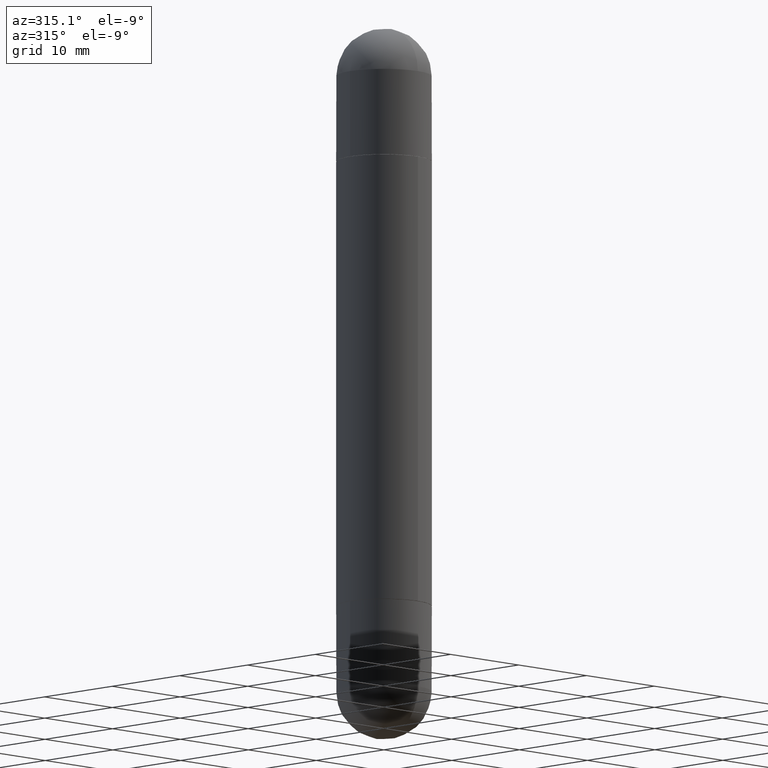
[diagram: clean part render]
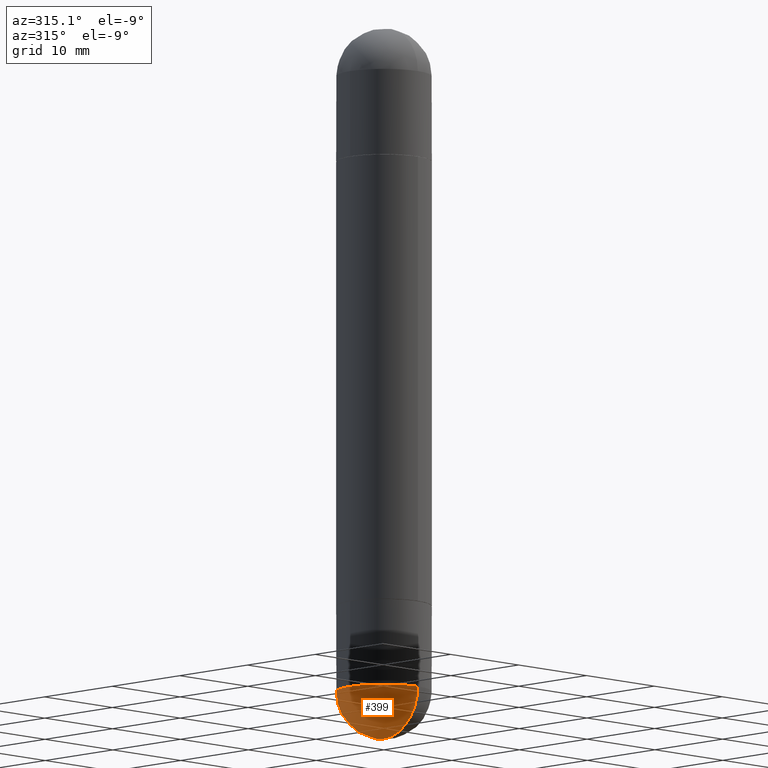
[diagram: same view with one face highlighted and labeled with its STEP entity id]
A machine part, auxiliary view. The second image highlights one B-rep face of the part: STEP entity #399.
In plain terms, the highlighted spherical surface has radius 5 mm.
Its self-contained STEP definition (entity closure, byte-faithful):
#50 = EDGE_CURVE ( 'NONE', #412, #401, #192, .T. ) ;
#53 = DIRECTION ( 'NONE',  ( 1.000000000000000000, -6.982962677686265922E-15, 4.883557194083112340E-29 ) ) ;
#55 = EDGE_LOOP ( 'NONE', ( #797, #791, #165, #136 ) ) ;
#110 = DIRECTION ( 'NONE',  ( -2.445468806185136597E-29, 3.491481338843145583E-15, 1.000000000000000000 ) ) ;
#128 = CARTESIAN_POINT ( 'NONE',  ( -0.1968500000000000527, -7.605041414231473522E-15, -2.755949999999999900 ) ) ;
#135 = DIRECTION ( 'NONE',  ( -1.000000000000000000, 6.982962677686265922E-15, -4.883557194083112340E-29 ) ) ;
#136 = ORIENTED_EDGE ( 'NONE', *, *, #747, .F. ) ;
#152 = CARTESIAN_POINT ( 'NONE',  ( 6.898277487190832498E-29, -1.077177487935548192E-14, -2.952800000000000313 ) ) ;
#156 = SPHERICAL_SURFACE ( 'NONE', #339, 0.1968500000000001915 ) ;
#165 = ORIENTED_EDGE ( 'NONE', *, *, #206, .F. ) ;
#192 = CIRCLE ( 'NONE', #355, 0.1968500000000001915 ) ;
#206 = EDGE_CURVE ( 'NONE', #353, #408, #416, .T. ) ;
#215 = AXIS2_PLACEMENT_3D ( 'NONE', #278, #273, #522 ) ;
#238 = DIRECTION ( 'NONE',  ( 1.000000000000000000, -6.982962677686266711E-15, 0.000000000000000000 ) ) ;
#244 = CARTESIAN_POINT ( 'NONE',  ( 6.739589756405927064E-29, -9.622347995784766935E-15, -2.755949999999999900 ) ) ;
#273 = DIRECTION ( 'NONE',  ( -1.000000000000000000, 7.105427357601001070E-15, -4.926315508542082329E-29 ) ) ;
#278 = CARTESIAN_POINT ( 'NONE',  ( 6.408469978492040817E-29, -1.009653036392481565E-14, -2.755949999999999900 ) ) ;
#301 = AXIS2_PLACEMENT_3D ( 'NONE', #615, #752, #303 ) ;
#303 = DIRECTION ( 'NONE',  ( 1.000000000000000000, -6.982962677686266711E-15, 0.000000000000000000 ) ) ;
#317 = CIRCLE ( 'NONE', #301, 0.1968500000000000527 ) ;
#339 = AXIS2_PLACEMENT_3D ( 'NONE', #385, #135, #456 ) ;
#353 = VERTEX_POINT ( 'NONE', #128 ) ;
#355 = AXIS2_PLACEMENT_3D ( 'NONE', #550, #53, #810 ) ;
#385 = CARTESIAN_POINT ( 'NONE',  ( 6.408469978492040817E-29, -1.009653036392481565E-14, -2.755949999999999900 ) ) ;
#399 = ADVANCED_FACE ( 'NONE', ( #583 ), #156, .T. ) ;
#401 = VERTEX_POINT ( 'NONE', #716 ) ;
#408 = VERTEX_POINT ( 'NONE', #787 ) ;
#412 = VERTEX_POINT ( 'NONE', #152 ) ;
#416 = CIRCLE ( 'NONE', #649, 0.1968500000000000527 ) ;
#427 = EDGE_CURVE ( 'NONE', #412, #408, #563, .T. ) ;
#456 = DIRECTION ( 'NONE',  ( 6.982962677686265922E-15, 1.000000000000000000, -2.775563112689114328E-15 ) ) ;
#522 = DIRECTION ( 'NONE',  ( -7.105427357600999492E-15, -1.000000000000000000, 0.000000000000000000 ) ) ;
#550 = CARTESIAN_POINT ( 'NONE',  ( 6.408469978492040817E-29, -1.009653036392481565E-14, -2.755949999999999900 ) ) ;
#563 = CIRCLE ( 'NONE', #215, 0.1968500000000001915 ) ;
#583 = FACE_OUTER_BOUND ( 'NONE', #55, .T. ) ;
#615 = CARTESIAN_POINT ( 'NONE',  ( 6.739589756405927064E-29, -9.622347995784766935E-15, -2.755949999999999900 ) ) ;
#649 = AXIS2_PLACEMENT_3D ( 'NONE', #244, #110, #238 ) ;
#716 = CARTESIAN_POINT ( 'NONE',  ( 1.374596203102607873E-15, 0.1968499999999902550, -2.755950000000000344 ) ) ;
#747 = EDGE_CURVE ( 'NONE', #401, #353, #317, .T. ) ;
#752 = DIRECTION ( 'NONE',  ( -2.445468806185136597E-29, 3.491481338843145583E-15, 1.000000000000000000 ) ) ;
#787 = CARTESIAN_POINT ( 'NONE',  ( -1.398703375343692115E-15, -0.1968500000000099892, -2.755949999999999456 ) ) ;
#791 = ORIENTED_EDGE ( 'NONE', *, *, #427, .T. ) ;
#797 = ORIENTED_EDGE ( 'NONE', *, *, #50, .F. ) ;
#810 = DIRECTION ( 'NONE',  ( 6.982962677686265133E-15, 1.000000000000000000, 0.000000000000000000 ) ) ;